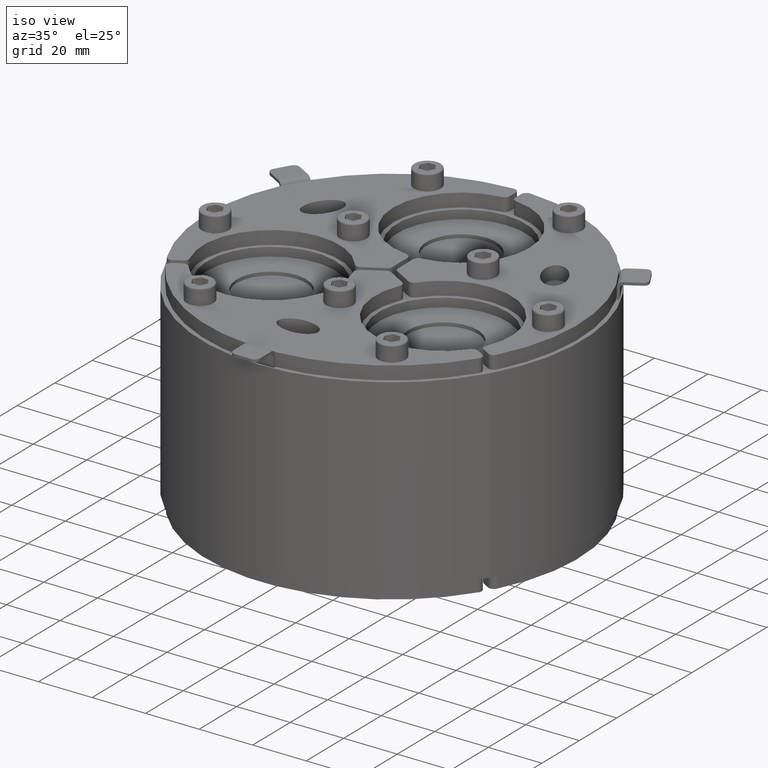
[diagram: clean part render]
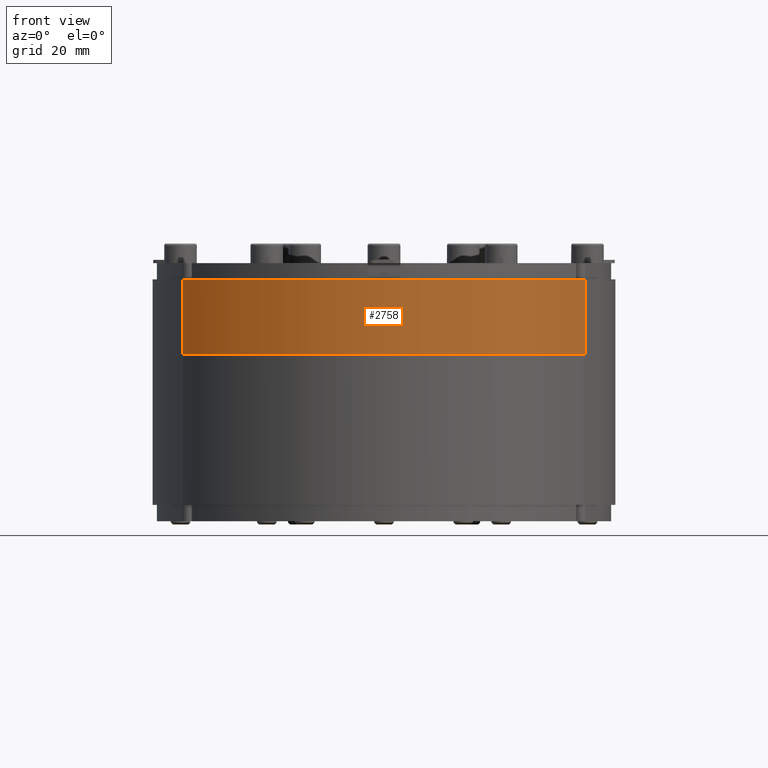
[diagram: tour spotlight — one face highlighted and labeled with its STEP entity id]
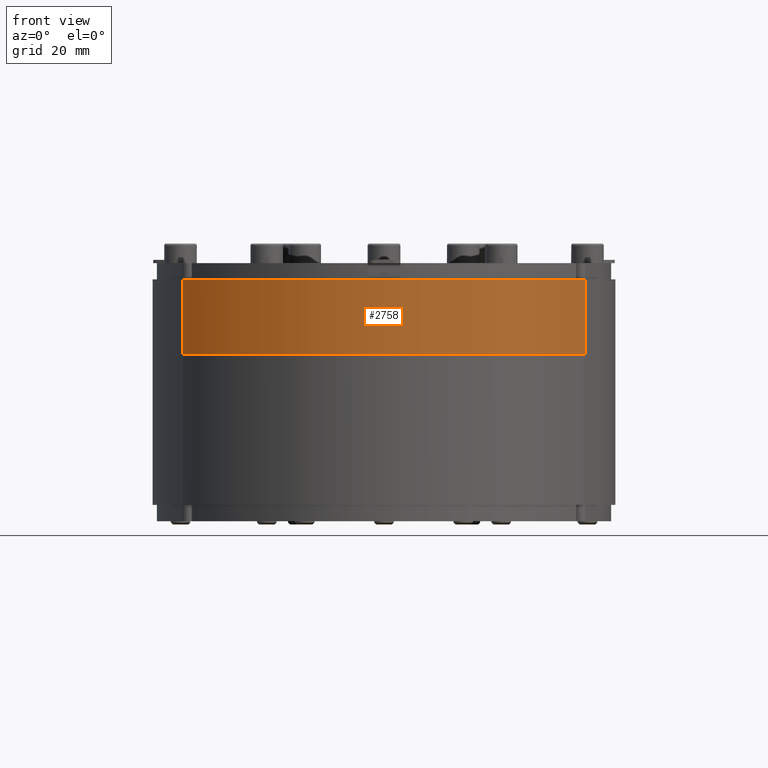
[diagram: tour spotlight — one face highlighted and labeled with its STEP entity id]
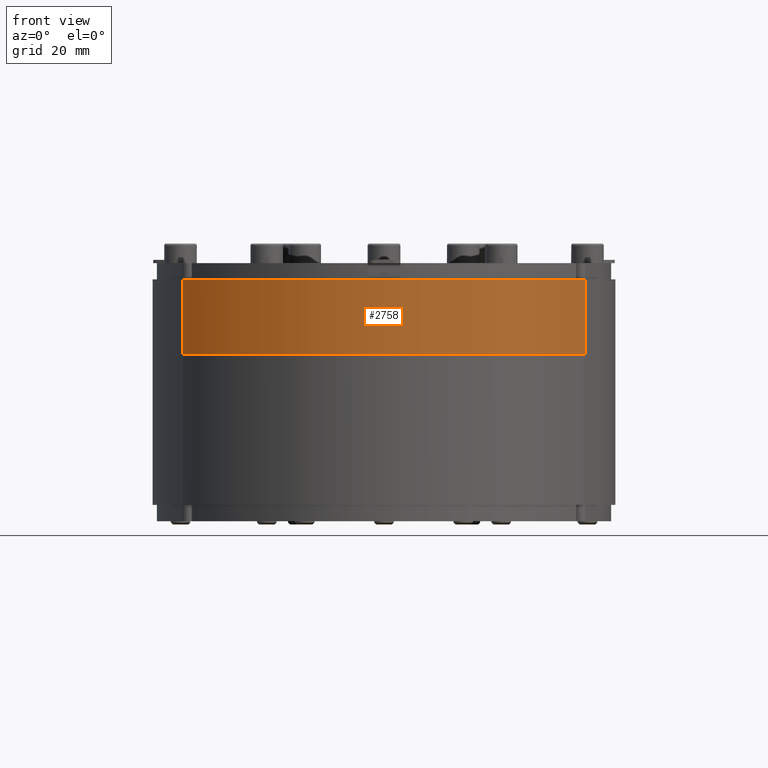
[diagram: tour spotlight — one face highlighted and labeled with its STEP entity id]
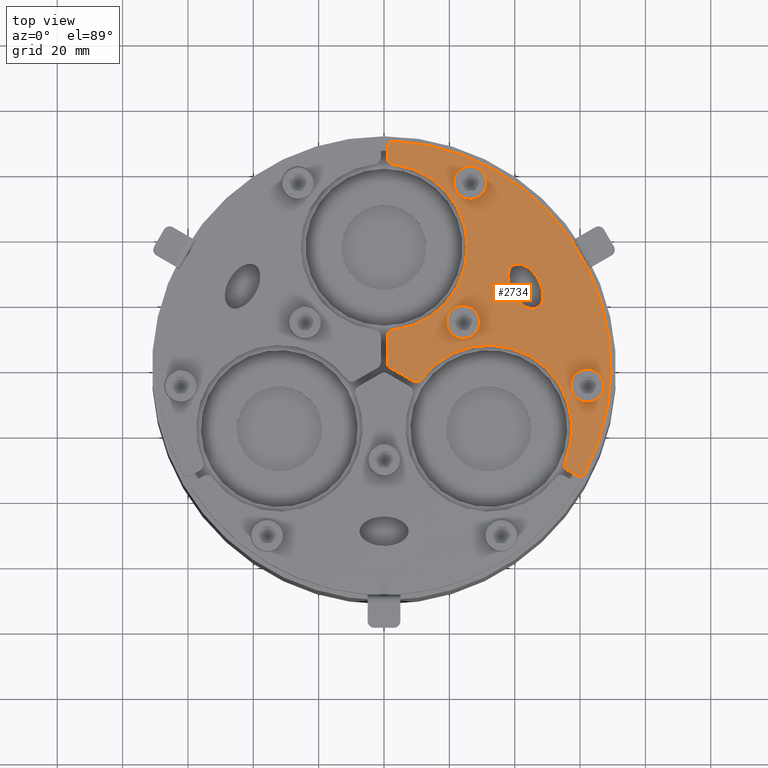
[diagram: tour spotlight — one face highlighted and labeled with its STEP entity id]
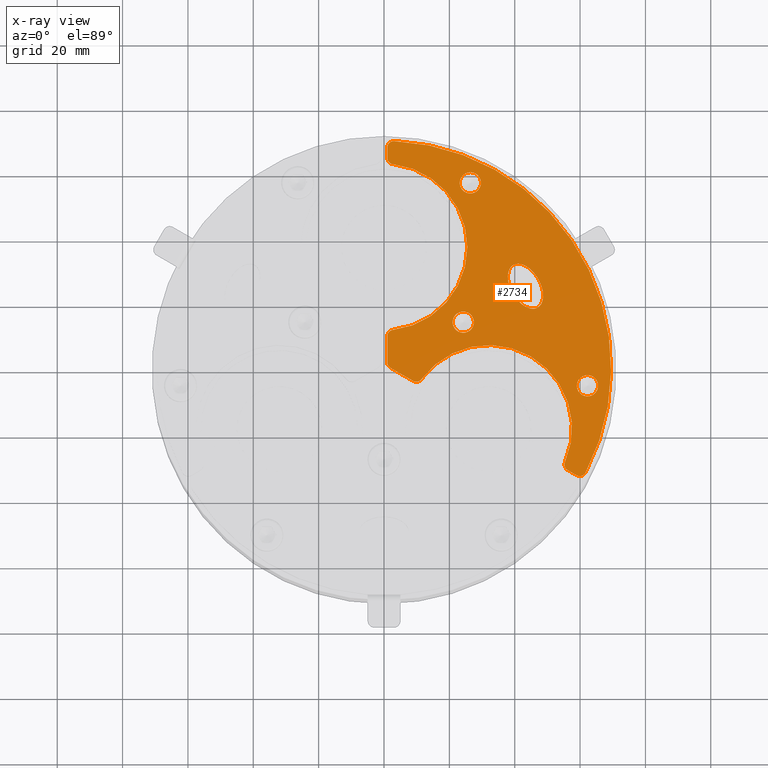
[diagram: x-ray of the same camera — body ghosted, this tour face saturated]
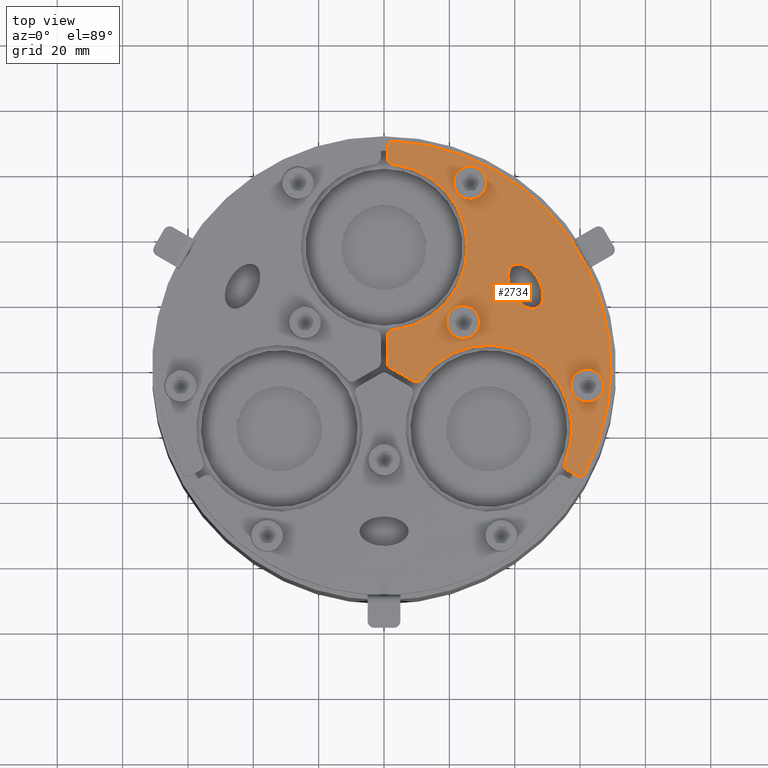
[diagram: tour spotlight — one face highlighted and labeled with its STEP entity id]
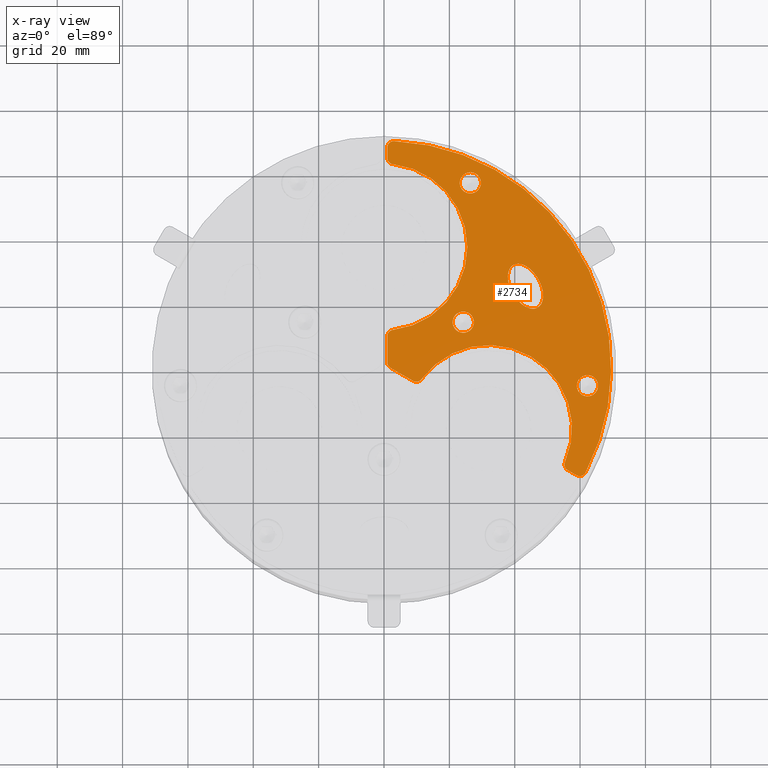
[diagram: x-ray of the same camera — body ghosted, this tour face saturated]
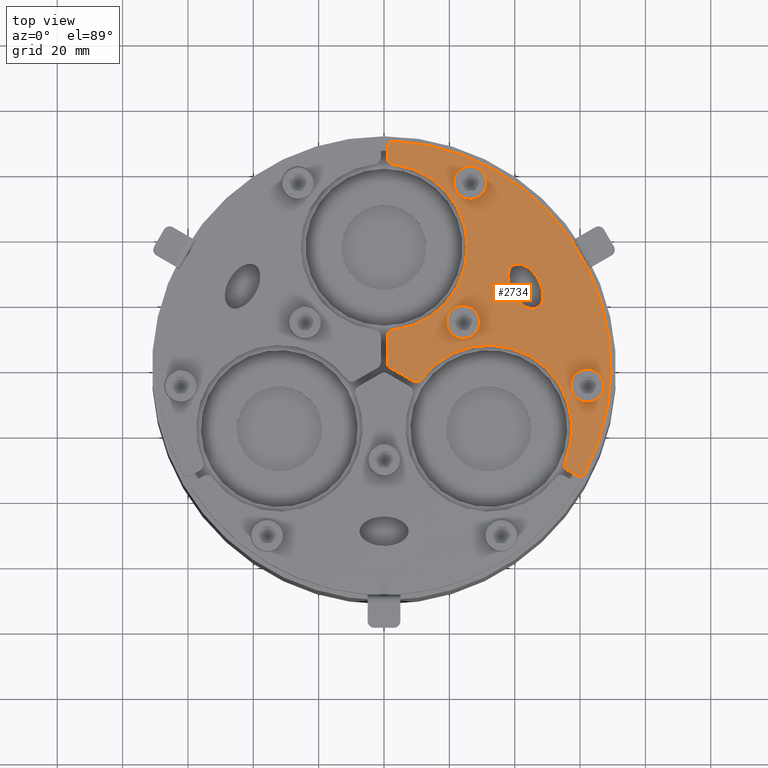
[diagram: tour spotlight — one face highlighted and labeled with its STEP entity id]
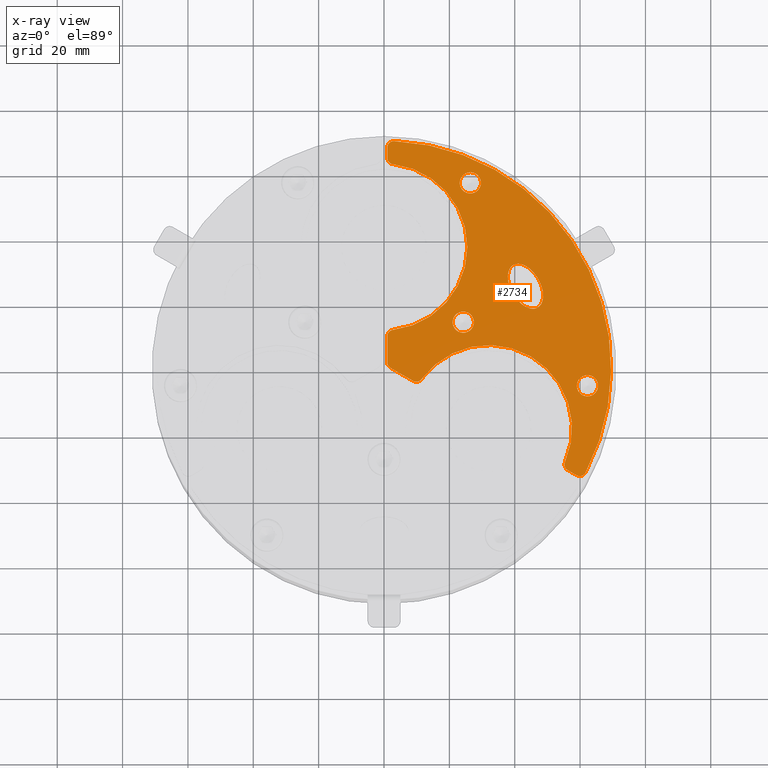
[diagram: x-ray of the same camera — body ghosted, this tour face saturated]
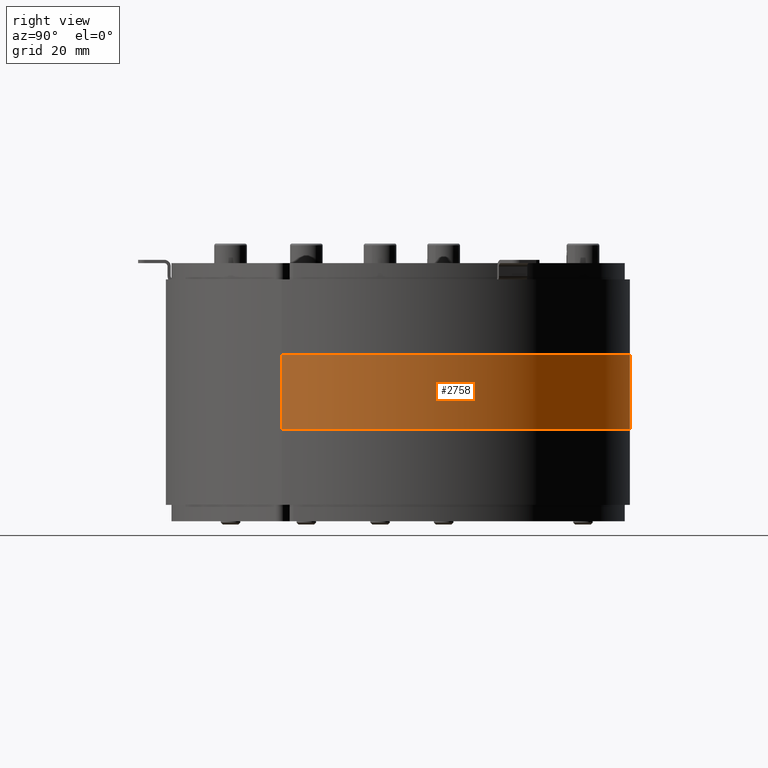
[diagram: tour spotlight — one face highlighted and labeled with its STEP entity id]
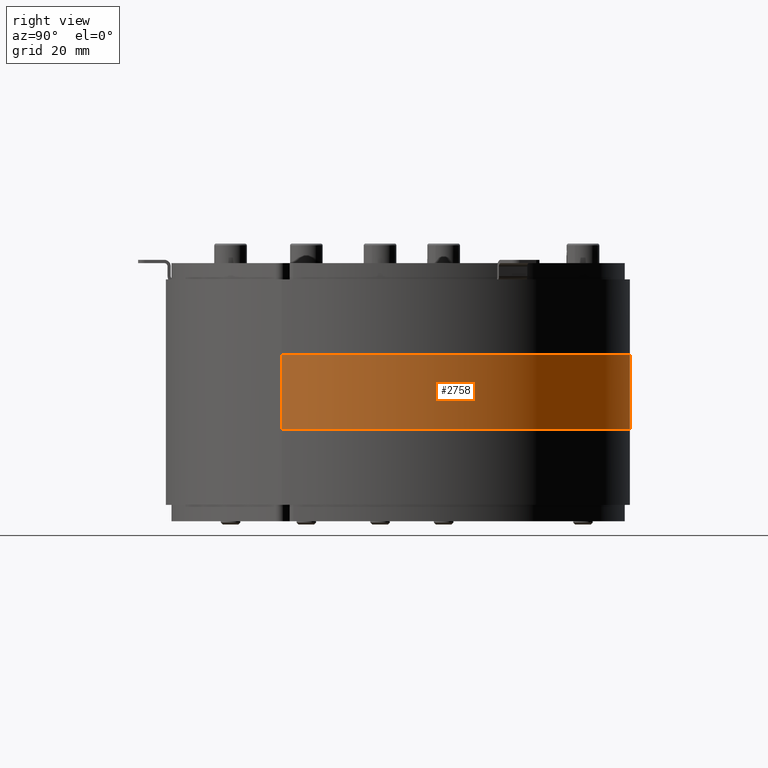
[diagram: tour spotlight — one face highlighted and labeled with its STEP entity id]
A machine part: a face-by-face anatomy tour. The part has 831 B-rep faces; the first image is the clean iso view, then the 8 largest visible faces are spotlighted one at a time (largest first), each with its STEP entity span.

Face 1 — front view, entity #2758. In plain terms, the highlighted cylindrical surface (partial cylindrical patch) has radius 71 mm, axis along (-0, 0, -1).
Definition (entity closure, byte-faithful):
#438=FACE_OUTER_BOUND('',#617,.T.);
#617=EDGE_LOOP('',(#2319,#2320,#2321,#2322));
#825=LINE('',#4800,#1047);
#826=LINE('',#4806,#1048);
#1047=VECTOR('',#3904,10.);
#1048=VECTOR('',#3911,10.);
#1224=CIRCLE('',#3242,71.);
#1225=CIRCLE('',#3243,71.);
#1416=VERTEX_POINT('',#4796);
#1417=VERTEX_POINT('',#4798);
#1418=VERTEX_POINT('',#4802);
#1419=VERTEX_POINT('',#4804);
#1736=EDGE_CURVE('',#1416,#1417,#825,.T.);
#1737=EDGE_CURVE('',#1416,#1418,#1224,.T.);
#1738=EDGE_CURVE('',#1419,#1417,#1225,.T.);
#1739=EDGE_CURVE('',#1418,#1419,#826,.T.);
#2319=ORIENTED_EDGE('',*,*,#1737,.F.);
#2320=ORIENTED_EDGE('',*,*,#1736,.T.);
#2321=ORIENTED_EDGE('',*,*,#1738,.F.);
#2322=ORIENTED_EDGE('',*,*,#1739,.F.);
#2641=CYLINDRICAL_SURFACE('',#3241,71.);
#2758=ADVANCED_FACE('',(#438),#2641,.T.);
#3241=AXIS2_PLACEMENT_3D('',#4801,#3905,#3906);
#3242=AXIS2_PLACEMENT_3D('',#4803,#3907,#3908);
#3243=AXIS2_PLACEMENT_3D('',#4805,#3909,#3910);
#3904=DIRECTION('',(0.,0.,-1.));
#3905=DIRECTION('center_axis',(0.,0.,-1.));
#3906=DIRECTION('ref_axis',(-0.866025403784439,0.5,0.));
#3907=DIRECTION('center_axis',(0.,0.,1.));
#3908=DIRECTION('ref_axis',(1.,0.,0.));
#3909=DIRECTION('center_axis',(0.,0.,-1.));
#3910=DIRECTION('ref_axis',(1.,0.,0.));
#3911=DIRECTION('',(0.,0.,-1.));
#4796=CARTESIAN_POINT('',(2.87548404282587E-15,71.,0.));
#4798=CARTESIAN_POINT('',(2.22044604925031E-15,71.,-23.));
#4800=CARTESIAN_POINT('',(2.87548404282587E-15,71.,0.));
#4801=CARTESIAN_POINT('Origin',(0.,0.,0.));
#4802=CARTESIAN_POINT('',(-61.4878036686952,-35.5,0.));
#4803=CARTESIAN_POINT('Origin',(0.,0.,0.));
#4804=CARTESIAN_POINT('',(-61.4878036686952,-35.5,-23.));
#4805=CARTESIAN_POINT('Origin',(0.,0.,-23.));
#4806=CARTESIAN_POINT('',(-61.4878036686952,-35.5,0.));

Face 2 — front view, entity #2758. In plain terms, the highlighted cylindrical surface (partial cylindrical patch) has radius 71 mm, axis along (-0, 0, -1).
Definition (entity closure, byte-faithful):
#438=FACE_OUTER_BOUND('',#617,.T.);
#617=EDGE_LOOP('',(#2319,#2320,#2321,#2322));
#825=LINE('',#4800,#1047);
#826=LINE('',#4806,#1048);
#1047=VECTOR('',#3904,10.);
#1048=VECTOR('',#3911,10.);
#1224=CIRCLE('',#3242,71.);
#1225=CIRCLE('',#3243,71.);
#1416=VERTEX_POINT('',#4796);
#1417=VERTEX_POINT('',#4798);
#1418=VERTEX_POINT('',#4802);
#1419=VERTEX_POINT('',#4804);
#1736=EDGE_CURVE('',#1416,#1417,#825,.T.);
#1737=EDGE_CURVE('',#1416,#1418,#1224,.T.);
#1738=EDGE_CURVE('',#1419,#1417,#1225,.T.);
#1739=EDGE_CURVE('',#1418,#1419,#826,.T.);
#2319=ORIENTED_EDGE('',*,*,#1737,.F.);
#2320=ORIENTED_EDGE('',*,*,#1736,.T.);
#2321=ORIENTED_EDGE('',*,*,#1738,.F.);
#2322=ORIENTED_EDGE('',*,*,#1739,.F.);
#2641=CYLINDRICAL_SURFACE('',#3241,71.);
#2758=ADVANCED_FACE('',(#438),#2641,.T.);
#3241=AXIS2_PLACEMENT_3D('',#4801,#3905,#3906);
#3242=AXIS2_PLACEMENT_3D('',#4803,#3907,#3908);
#3243=AXIS2_PLACEMENT_3D('',#4805,#3909,#3910);
#3904=DIRECTION('',(0.,0.,-1.));
#3905=DIRECTION('center_axis',(0.,0.,-1.));
#3906=DIRECTION('ref_axis',(-0.866025403784439,0.5,0.));
#3907=DIRECTION('center_axis',(0.,0.,1.));
#3908=DIRECTION('ref_axis',(1.,0.,0.));
#3909=DIRECTION('center_axis',(0.,0.,-1.));
#3910=DIRECTION('ref_axis',(1.,0.,0.));
#3911=DIRECTION('',(0.,0.,-1.));
#4796=CARTESIAN_POINT('',(2.87548404282587E-15,71.,0.));
#4798=CARTESIAN_POINT('',(2.22044604925031E-15,71.,-23.));
#4800=CARTESIAN_POINT('',(2.87548404282587E-15,71.,0.));
#4801=CARTESIAN_POINT('Origin',(0.,0.,0.));
#4802=CARTESIAN_POINT('',(-61.4878036686952,-35.5,0.));
#4803=CARTESIAN_POINT('Origin',(0.,0.,0.));
#4804=CARTESIAN_POINT('',(-61.4878036686952,-35.5,-23.));
#4805=CARTESIAN_POINT('Origin',(0.,0.,-23.));
#4806=CARTESIAN_POINT('',(-61.4878036686952,-35.5,0.));

Face 3 — front view, entity #2758. In plain terms, the highlighted cylindrical surface (partial cylindrical patch) has radius 71 mm, axis along (-0, 0, -1).
Definition (entity closure, byte-faithful):
#438=FACE_OUTER_BOUND('',#617,.T.);
#617=EDGE_LOOP('',(#2319,#2320,#2321,#2322));
#825=LINE('',#4800,#1047);
#826=LINE('',#4806,#1048);
#1047=VECTOR('',#3904,10.);
#1048=VECTOR('',#3911,10.);
#1224=CIRCLE('',#3242,71.);
#1225=CIRCLE('',#3243,71.);
#1416=VERTEX_POINT('',#4796);
#1417=VERTEX_POINT('',#4798);
#1418=VERTEX_POINT('',#4802);
#1419=VERTEX_POINT('',#4804);
#1736=EDGE_CURVE('',#1416,#1417,#825,.T.);
#1737=EDGE_CURVE('',#1416,#1418,#1224,.T.);
#1738=EDGE_CURVE('',#1419,#1417,#1225,.T.);
#1739=EDGE_CURVE('',#1418,#1419,#826,.T.);
#2319=ORIENTED_EDGE('',*,*,#1737,.F.);
#2320=ORIENTED_EDGE('',*,*,#1736,.T.);
#2321=ORIENTED_EDGE('',*,*,#1738,.F.);
#2322=ORIENTED_EDGE('',*,*,#1739,.F.);
#2641=CYLINDRICAL_SURFACE('',#3241,71.);
#2758=ADVANCED_FACE('',(#438),#2641,.T.);
#3241=AXIS2_PLACEMENT_3D('',#4801,#3905,#3906);
#3242=AXIS2_PLACEMENT_3D('',#4803,#3907,#3908);
#3243=AXIS2_PLACEMENT_3D('',#4805,#3909,#3910);
#3904=DIRECTION('',(0.,0.,-1.));
#3905=DIRECTION('center_axis',(0.,0.,-1.));
#3906=DIRECTION('ref_axis',(-0.866025403784439,0.5,0.));
#3907=DIRECTION('center_axis',(0.,0.,1.));
#3908=DIRECTION('ref_axis',(1.,0.,0.));
#3909=DIRECTION('center_axis',(0.,0.,-1.));
#3910=DIRECTION('ref_axis',(1.,0.,0.));
#3911=DIRECTION('',(0.,0.,-1.));
#4796=CARTESIAN_POINT('',(2.87548404282587E-15,71.,0.));
#4798=CARTESIAN_POINT('',(2.22044604925031E-15,71.,-23.));
#4800=CARTESIAN_POINT('',(2.87548404282587E-15,71.,0.));
#4801=CARTESIAN_POINT('Origin',(0.,0.,0.));
#4802=CARTESIAN_POINT('',(-61.4878036686952,-35.5,0.));
#4803=CARTESIAN_POINT('Origin',(0.,0.,0.));
#4804=CARTESIAN_POINT('',(-61.4878036686952,-35.5,-23.));
#4805=CARTESIAN_POINT('Origin',(0.,0.,-23.));
#4806=CARTESIAN_POINT('',(-61.4878036686952,-35.5,0.));

Face 4 — top view, entity #2734. An x-ray twin of the same camera follows (body ghosted, this face saturated) — the face is partly hidden behind the body. In plain terms, the highlighted planar face has unit normal (-0, 0, 1).
Definition (entity closure, byte-faithful):
#137=ELLIPSE('',#3195,7.5,4.5);
#235=FACE_BOUND('',#586,.T.);
#236=FACE_BOUND('',#587,.T.);
#237=FACE_BOUND('',#588,.T.);
#238=FACE_BOUND('',#589,.T.);
#291=PLANE('',#3182);
#414=FACE_OUTER_BOUND('',#585,.T.);
#585=EDGE_LOOP('',(#2195,#2196,#2197,#2198,#2199,#2200,#2201,#2202,#2203,
#2204,#2205,#2206,#2207,#2208));
#586=EDGE_LOOP('',(#2209));
#587=EDGE_LOOP('',(#2210));
#588=EDGE_LOOP('',(#2211));
#589=EDGE_LOOP('',(#2212));
#791=LINE('',#4644,#1013);
#794=LINE('',#4654,#1016);
#795=LINE('',#4662,#1017);
#796=LINE('',#4666,#1018);
#1013=VECTOR('',#3752,10.);
#1016=VECTOR('',#3761,10.);
#1017=VECTOR('',#3768,10.);
#1018=VECTOR('',#3771,10.);
#1191=CIRCLE('',#3180,2.);
#1192=CIRCLE('',#3183,69.5);
#1193=CIRCLE('',#3184,2.);
#1194=CIRCLE('',#3185,2.);
#1195=CIRCLE('',#3186,25.5);
#1196=CIRCLE('',#3187,2.);
#1197=CIRCLE('',#3188,2.);
#1198=CIRCLE('',#3189,2.);
#1199=CIRCLE('',#3190,25.5);
#1200=CIRCLE('',#3191,2.);
#1201=CIRCLE('',#3192,3.25);
#1202=CIRCLE('',#3193,3.25);
#1203=CIRCLE('',#3194,3.25);
#1370=VERTEX_POINT('',#4637);
#1371=VERTEX_POINT('',#4639);
#1372=VERTEX_POINT('',#4643);
#1374=VERTEX_POINT('',#4649);
#1375=VERTEX_POINT('',#4651);
#1376=VERTEX_POINT('',#4653);
#1377=VERTEX_POINT('',#4655);
#1378=VERTEX_POINT('',#4657);
#1379=VERTEX_POINT('',#4659);
#1380=VERTEX_POINT('',#4661);
#1381=VERTEX_POINT('',#4663);
#1382=VERTEX_POINT('',#4665);
#1383=VERTEX_POINT('',#4667);
#1384=VERTEX_POINT('',#4669);
#1385=VERTEX_POINT('',#4672);
#1386=VERTEX_POINT('',#4674);
#1387=VERTEX_POINT('',#4676);
#1388=VERTEX_POINT('',#4678);
#1666=EDGE_CURVE('',#1370,#1371,#1191,.T.);
#1668=EDGE_CURVE('',#1372,#1371,#791,.F.);
#1671=EDGE_CURVE('',#1370,#1374,#1192,.F.);
#1672=EDGE_CURVE('',#1375,#1374,#1193,.T.);
#1673=EDGE_CURVE('',#1375,#1376,#794,.F.);
#1674=EDGE_CURVE('',#1377,#1376,#1194,.T.);
#1675=EDGE_CURVE('',#1377,#1378,#1195,.F.);
#1676=EDGE_CURVE('',#1379,#1378,#1196,.T.);
#1677=EDGE_CURVE('',#1379,#1380,#795,.F.);
#1678=EDGE_CURVE('',#1381,#1380,#1197,.T.);
#1679=EDGE_CURVE('',#1381,#1382,#796,.F.);
#1680=EDGE_CURVE('',#1383,#1382,#1198,.T.);
#1681=EDGE_CURVE('',#1383,#1384,#1199,.F.);
#1682=EDGE_CURVE('',#1372,#1384,#1200,.T.);
#1683=EDGE_CURVE('',#1385,#1385,#1201,.T.);
#1684=EDGE_CURVE('',#1386,#1386,#1202,.T.);
#1685=EDGE_CURVE('',#1387,#1387,#1203,.T.);
#1686=EDGE_CURVE('',#1388,#1388,#137,.T.);
#2195=ORIENTED_EDGE('',*,*,#1666,.F.);
#2196=ORIENTED_EDGE('',*,*,#1671,.T.);
#2197=ORIENTED_EDGE('',*,*,#1672,.F.);
#2198=ORIENTED_EDGE('',*,*,#1673,.T.);
#2199=ORIENTED_EDGE('',*,*,#1674,.F.);
#2200=ORIENTED_EDGE('',*,*,#1675,.T.);
#2201=ORIENTED_EDGE('',*,*,#1676,.F.);
#2202=ORIENTED_EDGE('',*,*,#1677,.T.);
#2203=ORIENTED_EDGE('',*,*,#1678,.F.);
#2204=ORIENTED_EDGE('',*,*,#1679,.T.);
#2205=ORIENTED_EDGE('',*,*,#1680,.F.);
#2206=ORIENTED_EDGE('',*,*,#1681,.T.);
#2207=ORIENTED_EDGE('',*,*,#1682,.F.);
#2208=ORIENTED_EDGE('',*,*,#1668,.T.);
#2209=ORIENTED_EDGE('',*,*,#1683,.T.);
#2210=ORIENTED_EDGE('',*,*,#1684,.T.);
#2211=ORIENTED_EDGE('',*,*,#1685,.T.);
#2212=ORIENTED_EDGE('',*,*,#1686,.T.);
#2734=ADVANCED_FACE('',(#414,#235,#236,#237,#238),#291,.T.);
#3180=AXIS2_PLACEMENT_3D('',#4640,#3747,#3748);
#3182=AXIS2_PLACEMENT_3D('',#4648,#3755,#3756);
#3183=AXIS2_PLACEMENT_3D('',#4650,#3757,#3758);
#3184=AXIS2_PLACEMENT_3D('',#4652,#3759,#3760);
#3185=AXIS2_PLACEMENT_3D('',#4656,#3762,#3763);
#3186=AXIS2_PLACEMENT_3D('',#4658,#3764,#3765);
#3187=AXIS2_PLACEMENT_3D('',#4660,#3766,#3767);
#3188=AXIS2_PLACEMENT_3D('',#4664,#3769,#3770);
#3189=AXIS2_PLACEMENT_3D('',#4668,#3772,#3773);
#3190=AXIS2_PLACEMENT_3D('',#4670,#3774,#3775);
#3191=AXIS2_PLACEMENT_3D('',#4671,#3776,#3777);
#3192=AXIS2_PLACEMENT_3D('',#4673,#3778,#3779);
#3193=AXIS2_PLACEMENT_3D('',#4675,#3780,#3781);
#3194=AXIS2_PLACEMENT_3D('',#4677,#3782,#3783);
#3195=AXIS2_PLACEMENT_3D('',#4679,#3784,#3785);
#3747=DIRECTION('center_axis',(0.,0.,-1.));
#3748=DIRECTION('ref_axis',(0.691214711777594,0.722649446289291,0.));
#3752=DIRECTION('',(1.22464679914735E-16,-1.,0.));
#3755=DIRECTION('center_axis',(0.,0.,1.));
#3756=DIRECTION('ref_axis',(1.,0.,0.));
#3757=DIRECTION('center_axis',(0.,0.,-1.));
#3758=DIRECTION('ref_axis',(1.,0.,0.));
#3759=DIRECTION('center_axis',(0.,0.,-1.));
#3760=DIRECTION('ref_axis',(-0.280225422628497,-0.959934223013577,0.));
#3761=DIRECTION('',(-0.866025403784439,-0.499999999999999,0.));
#3762=DIRECTION('center_axis',(0.,0.,-1.));
#3763=DIRECTION('ref_axis',(0.950345020623565,-0.311198235496277,0.));
#3764=DIRECTION('center_axis',(0.,0.,1.));
#3765=DIRECTION('ref_axis',(-1.,0.,0.));
#3766=DIRECTION('center_axis',(0.,0.,-1.));
#3767=DIRECTION('ref_axis',(-0.205666932759117,-0.978622047968191,0.));
#3768=DIRECTION('',(-0.866025403784439,-0.5,0.));
#3769=DIRECTION('center_axis',(0.,0.,-1.));
#3770=DIRECTION('ref_axis',(0.866025403784439,-0.5,0.));
#3771=DIRECTION('',(0.,-1.,0.));
#3772=DIRECTION('center_axis',(0.,0.,-1.));
#3773=DIRECTION('ref_axis',(0.74467808786445,0.667423812471915,0.));
#3774=DIRECTION('center_axis',(0.,0.,1.));
#3775=DIRECTION('ref_axis',(-1.,0.,0.));
#3776=DIRECTION('center_axis',(0.,0.,-1.));
#3777=DIRECTION('ref_axis',(0.74467808786445,-0.667423812471915,0.));
#3778=DIRECTION('center_axis',(0.,0.,-1.));
#3779=DIRECTION('ref_axis',(1.,0.,0.));
#3780=DIRECTION('center_axis',(0.,0.,-1.));
#3781=DIRECTION('ref_axis',(1.,0.,0.));
#3782=DIRECTION('center_axis',(0.,0.,-1.));
#3783=DIRECTION('ref_axis',(1.,0.,0.));
#3784=DIRECTION('center_axis',(0.,0.,-1.));
#3785=DIRECTION('ref_axis',(-0.5,-0.866025403784438,0.));
#4637=CARTESIAN_POINT('',(-3.08888888888889,69.4313240938994,0.));
#4639=CARTESIAN_POINT('',(-0.999999999999997,67.4333003789671,0.));
#4640=CARTESIAN_POINT('Origin',(-3.,67.4333003789671,0.));
#4643=CARTESIAN_POINT('',(-0.999999999999997,64.3358738656733,0.));
#4644=CARTESIAN_POINT('',(-0.999999999999994,45.5524622482651,0.));
#4648=CARTESIAN_POINT('Origin',(-34.8227755452271,20.1049244965301,0.));
#4649=CARTESIAN_POINT('',(-61.6737349281519,-32.0406057997044,0.));
#4650=CARTESIAN_POINT('Origin',(0.,0.,0.));
#4651=CARTESIAN_POINT('',(-58.8989511892123,-32.8506247856991,0.));
#4652=CARTESIAN_POINT('Origin',(-59.8989511892123,-31.1185739781302,0.));
#4653=CARTESIAN_POINT('',(-56.2165011423444,-31.3019115290522,0.));
#4654=CARTESIAN_POINT('',(-35.6194718060948,-19.4102110972619,0.));
#4655=CARTESIAN_POINT('',(-55.3856966912666,-28.7647799417391,0.));
#4656=CARTESIAN_POINT('Origin',(-57.2165011423444,-29.5698607214833,0.));
#4657=CARTESIAN_POINT('',(-11.4820013706,-3.41696962993294,0.));
#4658=CARTESIAN_POINT('Origin',(-32.0429399400242,-18.5,0.));
#4659=CARTESIAN_POINT('',(-8.86937873770403,-3.96603766337891,0.));
#4660=CARTESIAN_POINT('Origin',(-9.86937873770403,-2.23398685581004,0.));
#4661=CARTESIAN_POINT('',(-2.,-2.77555756156289E-15,0.));
#4662=CARTESIAN_POINT('',(-9.2056969906694,-4.16021109726185,0.));
#4663=CARTESIAN_POINT('',(-1.,1.73205080756888,0.));
#4664=CARTESIAN_POINT('Origin',(-3.,1.73205080756888,0.));
#4665=CARTESIAN_POINT('',(-1.,9.6641261343267,0.));
#4666=CARTESIAN_POINT('',(-1.,16.552462248265,0.));
#4667=CARTESIAN_POINT('',(-2.78181818181818,11.6521896881939,0.));
#4668=CARTESIAN_POINT('Origin',(-3.,9.6641261343267,0.));
#4669=CARTESIAN_POINT('',(-2.78181818181818,62.3478103118062,0.));
#4670=CARTESIAN_POINT('Origin',(0.,37.,0.));
#4671=CARTESIAN_POINT('Origin',(-2.99999999999999,64.3358738656733,0.));
#4672=CARTESIAN_POINT('',(-29.6636413587937,56.6442366897906,0.));
#4673=CARTESIAN_POINT('Origin',(-26.4136413587937,56.6442366897906,0.));
#4674=CARTESIAN_POINT('',(-27.4987113059643,14.,0.));
#4675=CARTESIAN_POINT('Origin',(-24.2487113059643,14.,0.));
#4676=CARTESIAN_POINT('',(-65.5121686307341,-5.44723392172858,0.));
#4677=CARTESIAN_POINT('Origin',(-62.2621686307341,-5.44723392172858,0.));
#4678=CARTESIAN_POINT('',(-39.5512701892219,31.4951905283833,0.));
#4679=CARTESIAN_POINT('Origin',(-43.3012701892219,25.,0.));

Face 5 — top view, entity #2734. An x-ray twin of the same camera follows (body ghosted, this face saturated) — the face is partly hidden behind the body. In plain terms, the highlighted planar face has unit normal (0, -0, 1).
Definition (entity closure, byte-faithful):
#137=ELLIPSE('',#3195,7.5,4.5);
#235=FACE_BOUND('',#586,.T.);
#236=FACE_BOUND('',#587,.T.);
#237=FACE_BOUND('',#588,.T.);
#238=FACE_BOUND('',#589,.T.);
#291=PLANE('',#3182);
#414=FACE_OUTER_BOUND('',#585,.T.);
#585=EDGE_LOOP('',(#2195,#2196,#2197,#2198,#2199,#2200,#2201,#2202,#2203,
#2204,#2205,#2206,#2207,#2208));
#586=EDGE_LOOP('',(#2209));
#587=EDGE_LOOP('',(#2210));
#588=EDGE_LOOP('',(#2211));
#589=EDGE_LOOP('',(#2212));
#791=LINE('',#4644,#1013);
#794=LINE('',#4654,#1016);
#795=LINE('',#4662,#1017);
#796=LINE('',#4666,#1018);
#1013=VECTOR('',#3752,10.);
#1016=VECTOR('',#3761,10.);
#1017=VECTOR('',#3768,10.);
#1018=VECTOR('',#3771,10.);
#1191=CIRCLE('',#3180,2.);
#1192=CIRCLE('',#3183,69.5);
#1193=CIRCLE('',#3184,2.);
#1194=CIRCLE('',#3185,2.);
#1195=CIRCLE('',#3186,25.5);
#1196=CIRCLE('',#3187,2.);
#1197=CIRCLE('',#3188,2.);
#1198=CIRCLE('',#3189,2.);
#1199=CIRCLE('',#3190,25.5);
#1200=CIRCLE('',#3191,2.);
#1201=CIRCLE('',#3192,3.25);
#1202=CIRCLE('',#3193,3.25);
#1203=CIRCLE('',#3194,3.25);
#1370=VERTEX_POINT('',#4637);
#1371=VERTEX_POINT('',#4639);
#1372=VERTEX_POINT('',#4643);
#1374=VERTEX_POINT('',#4649);
#1375=VERTEX_POINT('',#4651);
#1376=VERTEX_POINT('',#4653);
#1377=VERTEX_POINT('',#4655);
#1378=VERTEX_POINT('',#4657);
#1379=VERTEX_POINT('',#4659);
#1380=VERTEX_POINT('',#4661);
#1381=VERTEX_POINT('',#4663);
#1382=VERTEX_POINT('',#4665);
#1383=VERTEX_POINT('',#4667);
#1384=VERTEX_POINT('',#4669);
#1385=VERTEX_POINT('',#4672);
#1386=VERTEX_POINT('',#4674);
#1387=VERTEX_POINT('',#4676);
#1388=VERTEX_POINT('',#4678);
#1666=EDGE_CURVE('',#1370,#1371,#1191,.T.);
#1668=EDGE_CURVE('',#1372,#1371,#791,.F.);
#1671=EDGE_CURVE('',#1370,#1374,#1192,.F.);
#1672=EDGE_CURVE('',#1375,#1374,#1193,.T.);
#1673=EDGE_CURVE('',#1375,#1376,#794,.F.);
#1674=EDGE_CURVE('',#1377,#1376,#1194,.T.);
#1675=EDGE_CURVE('',#1377,#1378,#1195,.F.);
#1676=EDGE_CURVE('',#1379,#1378,#1196,.T.);
#1677=EDGE_CURVE('',#1379,#1380,#795,.F.);
#1678=EDGE_CURVE('',#1381,#1380,#1197,.T.);
#1679=EDGE_CURVE('',#1381,#1382,#796,.F.);
#1680=EDGE_CURVE('',#1383,#1382,#1198,.T.);
#1681=EDGE_CURVE('',#1383,#1384,#1199,.F.);
#1682=EDGE_CURVE('',#1372,#1384,#1200,.T.);
#1683=EDGE_CURVE('',#1385,#1385,#1201,.T.);
#1684=EDGE_CURVE('',#1386,#1386,#1202,.T.);
#1685=EDGE_CURVE('',#1387,#1387,#1203,.T.);
#1686=EDGE_CURVE('',#1388,#1388,#137,.T.);
#2195=ORIENTED_EDGE('',*,*,#1666,.F.);
#2196=ORIENTED_EDGE('',*,*,#1671,.T.);
#2197=ORIENTED_EDGE('',*,*,#1672,.F.);
#2198=ORIENTED_EDGE('',*,*,#1673,.T.);
#2199=ORIENTED_EDGE('',*,*,#1674,.F.);
#2200=ORIENTED_EDGE('',*,*,#1675,.T.);
#2201=ORIENTED_EDGE('',*,*,#1676,.F.);
#2202=ORIENTED_EDGE('',*,*,#1677,.T.);
#2203=ORIENTED_EDGE('',*,*,#1678,.F.);
#2204=ORIENTED_EDGE('',*,*,#1679,.T.);
#2205=ORIENTED_EDGE('',*,*,#1680,.F.);
#2206=ORIENTED_EDGE('',*,*,#1681,.T.);
#2207=ORIENTED_EDGE('',*,*,#1682,.F.);
#2208=ORIENTED_EDGE('',*,*,#1668,.T.);
#2209=ORIENTED_EDGE('',*,*,#1683,.T.);
#2210=ORIENTED_EDGE('',*,*,#1684,.T.);
#2211=ORIENTED_EDGE('',*,*,#1685,.T.);
#2212=ORIENTED_EDGE('',*,*,#1686,.T.);
#2734=ADVANCED_FACE('',(#414,#235,#236,#237,#238),#291,.T.);
#3180=AXIS2_PLACEMENT_3D('',#4640,#3747,#3748);
#3182=AXIS2_PLACEMENT_3D('',#4648,#3755,#3756);
#3183=AXIS2_PLACEMENT_3D('',#4650,#3757,#3758);
#3184=AXIS2_PLACEMENT_3D('',#4652,#3759,#3760);
#3185=AXIS2_PLACEMENT_3D('',#4656,#3762,#3763);
#3186=AXIS2_PLACEMENT_3D('',#4658,#3764,#3765);
#3187=AXIS2_PLACEMENT_3D('',#4660,#3766,#3767);
#3188=AXIS2_PLACEMENT_3D('',#4664,#3769,#3770);
#3189=AXIS2_PLACEMENT_3D('',#4668,#3772,#3773);
#3190=AXIS2_PLACEMENT_3D('',#4670,#3774,#3775);
#3191=AXIS2_PLACEMENT_3D('',#4671,#3776,#3777);
#3192=AXIS2_PLACEMENT_3D('',#4673,#3778,#3779);
#3193=AXIS2_PLACEMENT_3D('',#4675,#3780,#3781);
#3194=AXIS2_PLACEMENT_3D('',#4677,#3782,#3783);
#3195=AXIS2_PLACEMENT_3D('',#4679,#3784,#3785);
#3747=DIRECTION('center_axis',(0.,0.,-1.));
#3748=DIRECTION('ref_axis',(0.691214711777594,0.722649446289291,0.));
#3752=DIRECTION('',(1.22464679914735E-16,-1.,0.));
#3755=DIRECTION('center_axis',(0.,0.,1.));
#3756=DIRECTION('ref_axis',(1.,0.,0.));
#3757=DIRECTION('center_axis',(0.,0.,-1.));
#3758=DIRECTION('ref_axis',(1.,0.,0.));
#3759=DIRECTION('center_axis',(0.,0.,-1.));
#3760=DIRECTION('ref_axis',(-0.280225422628497,-0.959934223013577,0.));
#3761=DIRECTION('',(-0.866025403784439,-0.499999999999999,0.));
#3762=DIRECTION('center_axis',(0.,0.,-1.));
#3763=DIRECTION('ref_axis',(0.950345020623565,-0.311198235496277,0.));
#3764=DIRECTION('center_axis',(0.,0.,1.));
#3765=DIRECTION('ref_axis',(-1.,0.,0.));
#3766=DIRECTION('center_axis',(0.,0.,-1.));
#3767=DIRECTION('ref_axis',(-0.205666932759117,-0.978622047968191,0.));
#3768=DIRECTION('',(-0.866025403784439,-0.5,0.));
#3769=DIRECTION('center_axis',(0.,0.,-1.));
#3770=DIRECTION('ref_axis',(0.866025403784439,-0.5,0.));
#3771=DIRECTION('',(0.,-1.,0.));
#3772=DIRECTION('center_axis',(0.,0.,-1.));
#3773=DIRECTION('ref_axis',(0.74467808786445,0.667423812471915,0.));
#3774=DIRECTION('center_axis',(0.,0.,1.));
#3775=DIRECTION('ref_axis',(-1.,0.,0.));
#3776=DIRECTION('center_axis',(0.,0.,-1.));
#3777=DIRECTION('ref_axis',(0.74467808786445,-0.667423812471915,0.));
#3778=DIRECTION('center_axis',(0.,0.,-1.));
#3779=DIRECTION('ref_axis',(1.,0.,0.));
#3780=DIRECTION('center_axis',(0.,0.,-1.));
#3781=DIRECTION('ref_axis',(1.,0.,0.));
#3782=DIRECTION('center_axis',(0.,0.,-1.));
#3783=DIRECTION('ref_axis',(1.,0.,0.));
#3784=DIRECTION('center_axis',(0.,0.,-1.));
#3785=DIRECTION('ref_axis',(-0.5,-0.866025403784438,0.));
#4637=CARTESIAN_POINT('',(-3.08888888888889,69.4313240938994,0.));
#4639=CARTESIAN_POINT('',(-0.999999999999997,67.4333003789671,0.));
#4640=CARTESIAN_POINT('Origin',(-3.,67.4333003789671,0.));
#4643=CARTESIAN_POINT('',(-0.999999999999997,64.3358738656733,0.));
#4644=CARTESIAN_POINT('',(-0.999999999999994,45.5524622482651,0.));
#4648=CARTESIAN_POINT('Origin',(-34.8227755452271,20.1049244965301,0.));
#4649=CARTESIAN_POINT('',(-61.6737349281519,-32.0406057997044,0.));
#4650=CARTESIAN_POINT('Origin',(0.,0.,0.));
#4651=CARTESIAN_POINT('',(-58.8989511892123,-32.8506247856991,0.));
#4652=CARTESIAN_POINT('Origin',(-59.8989511892123,-31.1185739781302,0.));
#4653=CARTESIAN_POINT('',(-56.2165011423444,-31.3019115290522,0.));
#4654=CARTESIAN_POINT('',(-35.6194718060948,-19.4102110972619,0.));
#4655=CARTESIAN_POINT('',(-55.3856966912666,-28.7647799417391,0.));
#4656=CARTESIAN_POINT('Origin',(-57.2165011423444,-29.5698607214833,0.));
#4657=CARTESIAN_POINT('',(-11.4820013706,-3.41696962993294,0.));
#4658=CARTESIAN_POINT('Origin',(-32.0429399400242,-18.5,0.));
#4659=CARTESIAN_POINT('',(-8.86937873770403,-3.96603766337891,0.));
#4660=CARTESIAN_POINT('Origin',(-9.86937873770403,-2.23398685581004,0.));
#4661=CARTESIAN_POINT('',(-2.,-2.77555756156289E-15,0.));
#4662=CARTESIAN_POINT('',(-9.2056969906694,-4.16021109726185,0.));
#4663=CARTESIAN_POINT('',(-1.,1.73205080756888,0.));
#4664=CARTESIAN_POINT('Origin',(-3.,1.73205080756888,0.));
#4665=CARTESIAN_POINT('',(-1.,9.6641261343267,0.));
#4666=CARTESIAN_POINT('',(-1.,16.552462248265,0.));
#4667=CARTESIAN_POINT('',(-2.78181818181818,11.6521896881939,0.));
#4668=CARTESIAN_POINT('Origin',(-3.,9.6641261343267,0.));
#4669=CARTESIAN_POINT('',(-2.78181818181818,62.3478103118062,0.));
#4670=CARTESIAN_POINT('Origin',(0.,37.,0.));
#4671=CARTESIAN_POINT('Origin',(-2.99999999999999,64.3358738656733,0.));
#4672=CARTESIAN_POINT('',(-29.6636413587937,56.6442366897906,0.));
#4673=CARTESIAN_POINT('Origin',(-26.4136413587937,56.6442366897906,0.));
#4674=CARTESIAN_POINT('',(-27.4987113059643,14.,0.));
#4675=CARTESIAN_POINT('Origin',(-24.2487113059643,14.,0.));
#4676=CARTESIAN_POINT('',(-65.5121686307341,-5.44723392172858,0.));
#4677=CARTESIAN_POINT('Origin',(-62.2621686307341,-5.44723392172858,0.));
#4678=CARTESIAN_POINT('',(-39.5512701892219,31.4951905283833,0.));
#4679=CARTESIAN_POINT('Origin',(-43.3012701892219,25.,0.));

Face 6 — top view, entity #2734. An x-ray twin of the same camera follows (body ghosted, this face saturated) — the face is partly hidden behind the body. In plain terms, the highlighted planar face has unit normal (0, 0, 1).
Definition (entity closure, byte-faithful):
#137=ELLIPSE('',#3195,7.5,4.5);
#235=FACE_BOUND('',#586,.T.);
#236=FACE_BOUND('',#587,.T.);
#237=FACE_BOUND('',#588,.T.);
#238=FACE_BOUND('',#589,.T.);
#291=PLANE('',#3182);
#414=FACE_OUTER_BOUND('',#585,.T.);
#585=EDGE_LOOP('',(#2195,#2196,#2197,#2198,#2199,#2200,#2201,#2202,#2203,
#2204,#2205,#2206,#2207,#2208));
#586=EDGE_LOOP('',(#2209));
#587=EDGE_LOOP('',(#2210));
#588=EDGE_LOOP('',(#2211));
#589=EDGE_LOOP('',(#2212));
#791=LINE('',#4644,#1013);
#794=LINE('',#4654,#1016);
#795=LINE('',#4662,#1017);
#796=LINE('',#4666,#1018);
#1013=VECTOR('',#3752,10.);
#1016=VECTOR('',#3761,10.);
#1017=VECTOR('',#3768,10.);
#1018=VECTOR('',#3771,10.);
#1191=CIRCLE('',#3180,2.);
#1192=CIRCLE('',#3183,69.5);
#1193=CIRCLE('',#3184,2.);
#1194=CIRCLE('',#3185,2.);
#1195=CIRCLE('',#3186,25.5);
#1196=CIRCLE('',#3187,2.);
#1197=CIRCLE('',#3188,2.);
#1198=CIRCLE('',#3189,2.);
#1199=CIRCLE('',#3190,25.5);
#1200=CIRCLE('',#3191,2.);
#1201=CIRCLE('',#3192,3.25);
#1202=CIRCLE('',#3193,3.25);
#1203=CIRCLE('',#3194,3.25);
#1370=VERTEX_POINT('',#4637);
#1371=VERTEX_POINT('',#4639);
#1372=VERTEX_POINT('',#4643);
#1374=VERTEX_POINT('',#4649);
#1375=VERTEX_POINT('',#4651);
#1376=VERTEX_POINT('',#4653);
#1377=VERTEX_POINT('',#4655);
#1378=VERTEX_POINT('',#4657);
#1379=VERTEX_POINT('',#4659);
#1380=VERTEX_POINT('',#4661);
#1381=VERTEX_POINT('',#4663);
#1382=VERTEX_POINT('',#4665);
#1383=VERTEX_POINT('',#4667);
#1384=VERTEX_POINT('',#4669);
#1385=VERTEX_POINT('',#4672);
#1386=VERTEX_POINT('',#4674);
#1387=VERTEX_POINT('',#4676);
#1388=VERTEX_POINT('',#4678);
#1666=EDGE_CURVE('',#1370,#1371,#1191,.T.);
#1668=EDGE_CURVE('',#1372,#1371,#791,.F.);
#1671=EDGE_CURVE('',#1370,#1374,#1192,.F.);
#1672=EDGE_CURVE('',#1375,#1374,#1193,.T.);
#1673=EDGE_CURVE('',#1375,#1376,#794,.F.);
#1674=EDGE_CURVE('',#1377,#1376,#1194,.T.);
#1675=EDGE_CURVE('',#1377,#1378,#1195,.F.);
#1676=EDGE_CURVE('',#1379,#1378,#1196,.T.);
#1677=EDGE_CURVE('',#1379,#1380,#795,.F.);
#1678=EDGE_CURVE('',#1381,#1380,#1197,.T.);
#1679=EDGE_CURVE('',#1381,#1382,#796,.F.);
#1680=EDGE_CURVE('',#1383,#1382,#1198,.T.);
#1681=EDGE_CURVE('',#1383,#1384,#1199,.F.);
#1682=EDGE_CURVE('',#1372,#1384,#1200,.T.);
#1683=EDGE_CURVE('',#1385,#1385,#1201,.T.);
#1684=EDGE_CURVE('',#1386,#1386,#1202,.T.);
#1685=EDGE_CURVE('',#1387,#1387,#1203,.T.);
#1686=EDGE_CURVE('',#1388,#1388,#137,.T.);
#2195=ORIENTED_EDGE('',*,*,#1666,.F.);
#2196=ORIENTED_EDGE('',*,*,#1671,.T.);
#2197=ORIENTED_EDGE('',*,*,#1672,.F.);
#2198=ORIENTED_EDGE('',*,*,#1673,.T.);
#2199=ORIENTED_EDGE('',*,*,#1674,.F.);
#2200=ORIENTED_EDGE('',*,*,#1675,.T.);
#2201=ORIENTED_EDGE('',*,*,#1676,.F.);
#2202=ORIENTED_EDGE('',*,*,#1677,.T.);
#2203=ORIENTED_EDGE('',*,*,#1678,.F.);
#2204=ORIENTED_EDGE('',*,*,#1679,.T.);
#2205=ORIENTED_EDGE('',*,*,#1680,.F.);
#2206=ORIENTED_EDGE('',*,*,#1681,.T.);
#2207=ORIENTED_EDGE('',*,*,#1682,.F.);
#2208=ORIENTED_EDGE('',*,*,#1668,.T.);
#2209=ORIENTED_EDGE('',*,*,#1683,.T.);
#2210=ORIENTED_EDGE('',*,*,#1684,.T.);
#2211=ORIENTED_EDGE('',*,*,#1685,.T.);
#2212=ORIENTED_EDGE('',*,*,#1686,.T.);
#2734=ADVANCED_FACE('',(#414,#235,#236,#237,#238),#291,.T.);
#3180=AXIS2_PLACEMENT_3D('',#4640,#3747,#3748);
#3182=AXIS2_PLACEMENT_3D('',#4648,#3755,#3756);
#3183=AXIS2_PLACEMENT_3D('',#4650,#3757,#3758);
#3184=AXIS2_PLACEMENT_3D('',#4652,#3759,#3760);
#3185=AXIS2_PLACEMENT_3D('',#4656,#3762,#3763);
#3186=AXIS2_PLACEMENT_3D('',#4658,#3764,#3765);
#3187=AXIS2_PLACEMENT_3D('',#4660,#3766,#3767);
#3188=AXIS2_PLACEMENT_3D('',#4664,#3769,#3770);
#3189=AXIS2_PLACEMENT_3D('',#4668,#3772,#3773);
#3190=AXIS2_PLACEMENT_3D('',#4670,#3774,#3775);
#3191=AXIS2_PLACEMENT_3D('',#4671,#3776,#3777);
#3192=AXIS2_PLACEMENT_3D('',#4673,#3778,#3779);
#3193=AXIS2_PLACEMENT_3D('',#4675,#3780,#3781);
#3194=AXIS2_PLACEMENT_3D('',#4677,#3782,#3783);
#3195=AXIS2_PLACEMENT_3D('',#4679,#3784,#3785);
#3747=DIRECTION('center_axis',(0.,0.,-1.));
#3748=DIRECTION('ref_axis',(0.691214711777594,0.722649446289291,0.));
#3752=DIRECTION('',(1.22464679914735E-16,-1.,0.));
#3755=DIRECTION('center_axis',(0.,0.,1.));
#3756=DIRECTION('ref_axis',(1.,0.,0.));
#3757=DIRECTION('center_axis',(0.,0.,-1.));
#3758=DIRECTION('ref_axis',(1.,0.,0.));
#3759=DIRECTION('center_axis',(0.,0.,-1.));
#3760=DIRECTION('ref_axis',(-0.280225422628497,-0.959934223013577,0.));
#3761=DIRECTION('',(-0.866025403784439,-0.499999999999999,0.));
#3762=DIRECTION('center_axis',(0.,0.,-1.));
#3763=DIRECTION('ref_axis',(0.950345020623565,-0.311198235496277,0.));
#3764=DIRECTION('center_axis',(0.,0.,1.));
#3765=DIRECTION('ref_axis',(-1.,0.,0.));
#3766=DIRECTION('center_axis',(0.,0.,-1.));
#3767=DIRECTION('ref_axis',(-0.205666932759117,-0.978622047968191,0.));
#3768=DIRECTION('',(-0.866025403784439,-0.5,0.));
#3769=DIRECTION('center_axis',(0.,0.,-1.));
#3770=DIRECTION('ref_axis',(0.866025403784439,-0.5,0.));
#3771=DIRECTION('',(0.,-1.,0.));
#3772=DIRECTION('center_axis',(0.,0.,-1.));
#3773=DIRECTION('ref_axis',(0.74467808786445,0.667423812471915,0.));
#3774=DIRECTION('center_axis',(0.,0.,1.));
#3775=DIRECTION('ref_axis',(-1.,0.,0.));
#3776=DIRECTION('center_axis',(0.,0.,-1.));
#3777=DIRECTION('ref_axis',(0.74467808786445,-0.667423812471915,0.));
#3778=DIRECTION('center_axis',(0.,0.,-1.));
#3779=DIRECTION('ref_axis',(1.,0.,0.));
#3780=DIRECTION('center_axis',(0.,0.,-1.));
#3781=DIRECTION('ref_axis',(1.,0.,0.));
#3782=DIRECTION('center_axis',(0.,0.,-1.));
#3783=DIRECTION('ref_axis',(1.,0.,0.));
#3784=DIRECTION('center_axis',(0.,0.,-1.));
#3785=DIRECTION('ref_axis',(-0.5,-0.866025403784438,0.));
#4637=CARTESIAN_POINT('',(-3.08888888888889,69.4313240938994,0.));
#4639=CARTESIAN_POINT('',(-0.999999999999997,67.4333003789671,0.));
#4640=CARTESIAN_POINT('Origin',(-3.,67.4333003789671,0.));
#4643=CARTESIAN_POINT('',(-0.999999999999997,64.3358738656733,0.));
#4644=CARTESIAN_POINT('',(-0.999999999999994,45.5524622482651,0.));
#4648=CARTESIAN_POINT('Origin',(-34.8227755452271,20.1049244965301,0.));
#4649=CARTESIAN_POINT('',(-61.6737349281519,-32.0406057997044,0.));
#4650=CARTESIAN_POINT('Origin',(0.,0.,0.));
#4651=CARTESIAN_POINT('',(-58.8989511892123,-32.8506247856991,0.));
#4652=CARTESIAN_POINT('Origin',(-59.8989511892123,-31.1185739781302,0.));
#4653=CARTESIAN_POINT('',(-56.2165011423444,-31.3019115290522,0.));
#4654=CARTESIAN_POINT('',(-35.6194718060948,-19.4102110972619,0.));
#4655=CARTESIAN_POINT('',(-55.3856966912666,-28.7647799417391,0.));
#4656=CARTESIAN_POINT('Origin',(-57.2165011423444,-29.5698607214833,0.));
#4657=CARTESIAN_POINT('',(-11.4820013706,-3.41696962993294,0.));
#4658=CARTESIAN_POINT('Origin',(-32.0429399400242,-18.5,0.));
#4659=CARTESIAN_POINT('',(-8.86937873770403,-3.96603766337891,0.));
#4660=CARTESIAN_POINT('Origin',(-9.86937873770403,-2.23398685581004,0.));
#4661=CARTESIAN_POINT('',(-2.,-2.77555756156289E-15,0.));
#4662=CARTESIAN_POINT('',(-9.2056969906694,-4.16021109726185,0.));
#4663=CARTESIAN_POINT('',(-1.,1.73205080756888,0.));
#4664=CARTESIAN_POINT('Origin',(-3.,1.73205080756888,0.));
#4665=CARTESIAN_POINT('',(-1.,9.6641261343267,0.));
#4666=CARTESIAN_POINT('',(-1.,16.552462248265,0.));
#4667=CARTESIAN_POINT('',(-2.78181818181818,11.6521896881939,0.));
#4668=CARTESIAN_POINT('Origin',(-3.,9.6641261343267,0.));
#4669=CARTESIAN_POINT('',(-2.78181818181818,62.3478103118062,0.));
#4670=CARTESIAN_POINT('Origin',(0.,37.,0.));
#4671=CARTESIAN_POINT('Origin',(-2.99999999999999,64.3358738656733,0.));
#4672=CARTESIAN_POINT('',(-29.6636413587937,56.6442366897906,0.));
#4673=CARTESIAN_POINT('Origin',(-26.4136413587937,56.6442366897906,0.));
#4674=CARTESIAN_POINT('',(-27.4987113059643,14.,0.));
#4675=CARTESIAN_POINT('Origin',(-24.2487113059643,14.,0.));
#4676=CARTESIAN_POINT('',(-65.5121686307341,-5.44723392172858,0.));
#4677=CARTESIAN_POINT('Origin',(-62.2621686307341,-5.44723392172858,0.));
#4678=CARTESIAN_POINT('',(-39.5512701892219,31.4951905283833,0.));
#4679=CARTESIAN_POINT('Origin',(-43.3012701892219,25.,0.));

Face 7 — right view, entity #2758. In plain terms, the highlighted cylindrical surface (partial cylindrical patch) has radius 71 mm, axis along (0, -0, -1).
Definition (entity closure, byte-faithful):
#438=FACE_OUTER_BOUND('',#617,.T.);
#617=EDGE_LOOP('',(#2319,#2320,#2321,#2322));
#825=LINE('',#4800,#1047);
#826=LINE('',#4806,#1048);
#1047=VECTOR('',#3904,10.);
#1048=VECTOR('',#3911,10.);
#1224=CIRCLE('',#3242,71.);
#1225=CIRCLE('',#3243,71.);
#1416=VERTEX_POINT('',#4796);
#1417=VERTEX_POINT('',#4798);
#1418=VERTEX_POINT('',#4802);
#1419=VERTEX_POINT('',#4804);
#1736=EDGE_CURVE('',#1416,#1417,#825,.T.);
#1737=EDGE_CURVE('',#1416,#1418,#1224,.T.);
#1738=EDGE_CURVE('',#1419,#1417,#1225,.T.);
#1739=EDGE_CURVE('',#1418,#1419,#826,.T.);
#2319=ORIENTED_EDGE('',*,*,#1737,.F.);
#2320=ORIENTED_EDGE('',*,*,#1736,.T.);
#2321=ORIENTED_EDGE('',*,*,#1738,.F.);
#2322=ORIENTED_EDGE('',*,*,#1739,.F.);
#2641=CYLINDRICAL_SURFACE('',#3241,71.);
#2758=ADVANCED_FACE('',(#438),#2641,.T.);
#3241=AXIS2_PLACEMENT_3D('',#4801,#3905,#3906);
#3242=AXIS2_PLACEMENT_3D('',#4803,#3907,#3908);
#3243=AXIS2_PLACEMENT_3D('',#4805,#3909,#3910);
#3904=DIRECTION('',(0.,0.,-1.));
#3905=DIRECTION('center_axis',(0.,0.,-1.));
#3906=DIRECTION('ref_axis',(-0.866025403784439,0.5,0.));
#3907=DIRECTION('center_axis',(0.,0.,1.));
#3908=DIRECTION('ref_axis',(1.,0.,0.));
#3909=DIRECTION('center_axis',(0.,0.,-1.));
#3910=DIRECTION('ref_axis',(1.,0.,0.));
#3911=DIRECTION('',(0.,0.,-1.));
#4796=CARTESIAN_POINT('',(2.87548404282587E-15,71.,0.));
#4798=CARTESIAN_POINT('',(2.22044604925031E-15,71.,-23.));
#4800=CARTESIAN_POINT('',(2.87548404282587E-15,71.,0.));
#4801=CARTESIAN_POINT('Origin',(0.,0.,0.));
#4802=CARTESIAN_POINT('',(-61.4878036686952,-35.5,0.));
#4803=CARTESIAN_POINT('Origin',(0.,0.,0.));
#4804=CARTESIAN_POINT('',(-61.4878036686952,-35.5,-23.));
#4805=CARTESIAN_POINT('Origin',(0.,0.,-23.));
#4806=CARTESIAN_POINT('',(-61.4878036686952,-35.5,0.));

Face 8 — right view, entity #2758. In plain terms, the highlighted cylindrical surface (partial cylindrical patch) has radius 71 mm, axis along (0, -0, -1).
Definition (entity closure, byte-faithful):
#438=FACE_OUTER_BOUND('',#617,.T.);
#617=EDGE_LOOP('',(#2319,#2320,#2321,#2322));
#825=LINE('',#4800,#1047);
#826=LINE('',#4806,#1048);
#1047=VECTOR('',#3904,10.);
#1048=VECTOR('',#3911,10.);
#1224=CIRCLE('',#3242,71.);
#1225=CIRCLE('',#3243,71.);
#1416=VERTEX_POINT('',#4796);
#1417=VERTEX_POINT('',#4798);
#1418=VERTEX_POINT('',#4802);
#1419=VERTEX_POINT('',#4804);
#1736=EDGE_CURVE('',#1416,#1417,#825,.T.);
#1737=EDGE_CURVE('',#1416,#1418,#1224,.T.);
#1738=EDGE_CURVE('',#1419,#1417,#1225,.T.);
#1739=EDGE_CURVE('',#1418,#1419,#826,.T.);
#2319=ORIENTED_EDGE('',*,*,#1737,.F.);
#2320=ORIENTED_EDGE('',*,*,#1736,.T.);
#2321=ORIENTED_EDGE('',*,*,#1738,.F.);
#2322=ORIENTED_EDGE('',*,*,#1739,.F.);
#2641=CYLINDRICAL_SURFACE('',#3241,71.);
#2758=ADVANCED_FACE('',(#438),#2641,.T.);
#3241=AXIS2_PLACEMENT_3D('',#4801,#3905,#3906);
#3242=AXIS2_PLACEMENT_3D('',#4803,#3907,#3908);
#3243=AXIS2_PLACEMENT_3D('',#4805,#3909,#3910);
#3904=DIRECTION('',(0.,0.,-1.));
#3905=DIRECTION('center_axis',(0.,0.,-1.));
#3906=DIRECTION('ref_axis',(-0.866025403784439,0.5,0.));
#3907=DIRECTION('center_axis',(0.,0.,1.));
#3908=DIRECTION('ref_axis',(1.,0.,0.));
#3909=DIRECTION('center_axis',(0.,0.,-1.));
#3910=DIRECTION('ref_axis',(1.,0.,0.));
#3911=DIRECTION('',(0.,0.,-1.));
#4796=CARTESIAN_POINT('',(2.87548404282587E-15,71.,0.));
#4798=CARTESIAN_POINT('',(2.22044604925031E-15,71.,-23.));
#4800=CARTESIAN_POINT('',(2.87548404282587E-15,71.,0.));
#4801=CARTESIAN_POINT('Origin',(0.,0.,0.));
#4802=CARTESIAN_POINT('',(-61.4878036686952,-35.5,0.));
#4803=CARTESIAN_POINT('Origin',(0.,0.,0.));
#4804=CARTESIAN_POINT('',(-61.4878036686952,-35.5,-23.));
#4805=CARTESIAN_POINT('Origin',(0.,0.,-23.));
#4806=CARTESIAN_POINT('',(-61.4878036686952,-35.5,0.));